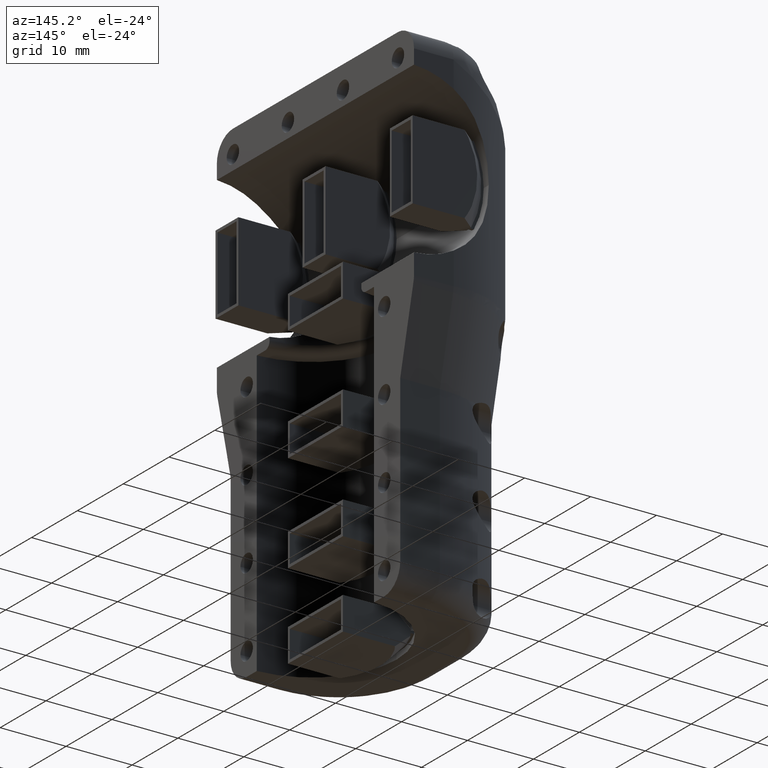
[diagram: clean part render]
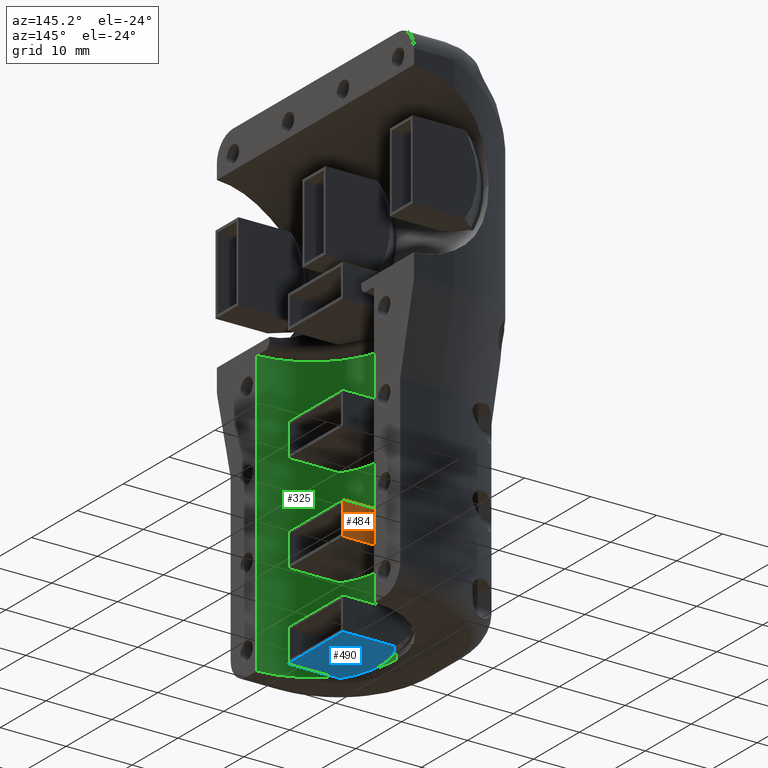
[diagram: same view with three faces highlighted in distinct colors, each labeled with its STEP entity id]
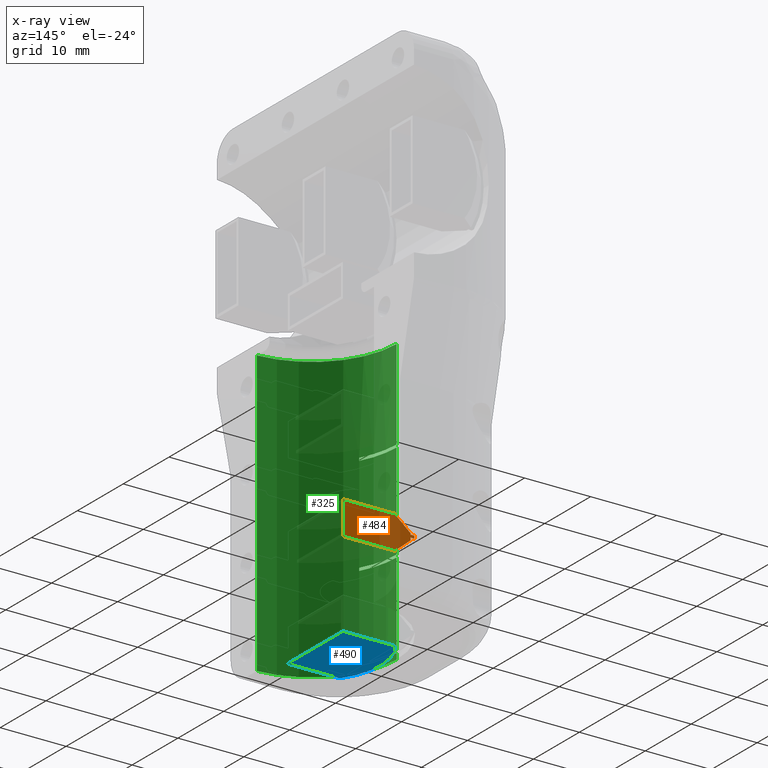
[diagram: x-ray of the same camera — body ghosted, the three highlighted faces saturated]
A machine part, auxiliary view with three faces highlighted in distinct colors.
The next image is the same camera in x-ray (body ghosted, the three faces saturated) — at least one of them is partly hidden behind the body in this view.
Their STEP definitions:

[orange] entity #484 — the highlighted planar face has unit normal (0, 1, 0).
#484=ADVANCED_FACE('',(#736),#2595,.T.);
#736=FACE_OUTER_BOUND('',#1024,.F.);
#1024=EDGE_LOOP('',(#2143,#2144,#2145,#2146,#2147,#2148,#2149,#2150,#2151,
#2152));
#2143=ORIENTED_EDGE('',*,*,#5006,.T.);
#2144=ORIENTED_EDGE('',*,*,#5014,.F.);
#2145=ORIENTED_EDGE('',*,*,#4428,.F.);
#2146=ORIENTED_EDGE('',*,*,#5010,.F.);
#2147=ORIENTED_EDGE('',*,*,#5019,.F.);
#2148=ORIENTED_EDGE('',*,*,#4495,.F.);
#2149=ORIENTED_EDGE('',*,*,#5017,.F.);
#2150=ORIENTED_EDGE('',*,*,#5015,.F.);
#2151=ORIENTED_EDGE('',*,*,#4424,.T.);
#2152=ORIENTED_EDGE('',*,*,#5007,.F.);
#2595=PLANE('',#6139);
#3694=LINE('',#8294,#4073);
#3926=LINE('',#9759,#4305);
#3927=LINE('',#9760,#4306);
#3930=LINE('',#9763,#4309);
#3934=LINE('',#9767,#4313);
#3935=LINE('',#9768,#4314);
#3937=LINE('',#9770,#4316);
#3939=LINE('',#9772,#4318);
#4073=VECTOR('',#6284,0.410000000000007);
#4305=VECTOR('',#6938,5.);
#4306=VECTOR('',#6939,7.87178577275814);
#4309=VECTOR('',#6942,0.199999999999999);
#4313=VECTOR('',#6946,7.87178577275814);
#4314=VECTOR('',#6947,0.389999999999999);
#4316=VECTOR('',#6949,0.568989569983848);
#4318=VECTOR('',#6951,0.56898956998384);
#4424=EDGE_CURVE('',#5672,#5671,#5139,.T.);
#4428=EDGE_CURVE('',#5664,#5663,#5143,.T.);
#4495=EDGE_CURVE('',#5588,#5590,#3694,.T.);
#5006=EDGE_CURVE('',#5274,#5273,#3926,.T.);
#5007=EDGE_CURVE('',#5274,#5671,#3927,.T.);
#5010=EDGE_CURVE('',#5272,#5664,#3930,.T.);
#5014=EDGE_CURVE('',#5663,#5273,#3934,.T.);
#5015=EDGE_CURVE('',#5672,#5270,#3935,.T.);
#5017=EDGE_CURVE('',#5270,#5588,#3937,.T.);
#5019=EDGE_CURVE('',#5590,#5272,#3939,.T.);
#5139=B_SPLINE_CURVE_WITH_KNOTS('',3,(#8133,#8134,#8135,#8136,#8137,#8138),
 .UNSPECIFIED.,.F.,.F.,(4,1,1,4),(0.,0.388508162409244,0.610717458879716,
1.),.UNSPECIFIED.);
#5143=B_SPLINE_CURVE_WITH_KNOTS('',3,(#8157,#8158,#8159,#8160,#8161,#8162),
 .UNSPECIFIED.,.F.,.F.,(4,1,1,4),(0.,0.388508162409244,0.610717458879716,
1.),.UNSPECIFIED.);
#5270=VERTEX_POINT('',#7618);
#5272=VERTEX_POINT('',#7620);
#5273=VERTEX_POINT('',#7621);
#5274=VERTEX_POINT('',#7622);
#5588=VERTEX_POINT('',#7936);
#5590=VERTEX_POINT('',#7938);
#5663=VERTEX_POINT('',#8011);
#5664=VERTEX_POINT('',#8012);
#5671=VERTEX_POINT('',#8019);
#5672=VERTEX_POINT('',#8020);
#6139=AXIS2_PLACEMENT_3D('',#10535,#7417,#7418);
#6284=DIRECTION('',(0.,0.,1.));
#6938=DIRECTION('',(0.,0.,1.));
#6939=DIRECTION('',(-0.999999999496444,3.17350237945785E-05,0.));
#6942=DIRECTION('',(0.,0.,1.));
#6946=DIRECTION('',(0.999999999496444,-3.17350237945785E-05,0.));
#6947=DIRECTION('',(0.,0.,1.));
#6949=DIRECTION('',(-0.999999999496444,3.17350237949729E-05,0.));
#6951=DIRECTION('',(0.999999999496444,-3.17350237934123E-05,0.));
#7417=DIRECTION('',(3.17350237945512E-05,0.999999999496444,0.));
#7418=DIRECTION('',(0.999999999496444,-3.17350237945277E-05,0.));
#7618=CARTESIAN_POINT('',(-10.2371268021274,6.0009600751791,13.8997694628473));
#7620=CARTESIAN_POINT('',(-10.2371268021274,6.00096007517911,14.3097694628473));
#7621=CARTESIAN_POINT('',(0.,6.00063519971629,16.5097694628473));
#7622=CARTESIAN_POINT('',(0.,6.00063519971628,11.5097694628473));
#7936=CARTESIAN_POINT('',(-10.8061163718247,6.00097813207663,13.8997694628473));
#7938=CARTESIAN_POINT('',(-10.8061163718247,6.00097813207664,14.3097694628473));
#8011=CARTESIAN_POINT('',(-7.87158140920094,6.00104863670219,16.50976969161));
#8012=CARTESIAN_POINT('',(-10.2369776008974,6.00111471368533,14.5097695188101));
#8019=CARTESIAN_POINT('',(-7.87158140920096,6.00104863670218,11.5097692340846));
#8020=CARTESIAN_POINT('',(-10.2369776008975,6.00111471368532,13.5097694068845));
#8133=CARTESIAN_POINT('',(-10.2369029270063,6.00119199198456,13.509769294959));
#8134=CARTESIAN_POINT('',(-9.934710197635,6.00110436709798,13.2459191646709));
#8135=CARTESIAN_POINT('',(-9.45772612309042,6.0007772490886,12.8333895581357));
#8136=CARTESIAN_POINT('',(-8.66990914697504,6.00075889955645,12.1658380331844));
#8137=CARTESIAN_POINT('',(-8.1834475611798,6.0010586356947,11.7632590406455));
#8138=CARTESIAN_POINT('',(-7.87147895051013,6.00113024962582,11.5097687765593));
#8157=CARTESIAN_POINT('',(-10.2369029270062,6.00119199198457,14.5097696307357));
#8158=CARTESIAN_POINT('',(-9.93471019763496,6.00110436709799,14.7736197610238));
#8159=CARTESIAN_POINT('',(-9.45772612309038,6.00077724908861,15.186149367559));
#8160=CARTESIAN_POINT('',(-8.66990914697501,6.00075889955646,15.8537008925102));
#8161=CARTESIAN_POINT('',(-8.18344756117976,6.00105863569472,16.2562798850492));
#8162=CARTESIAN_POINT('',(-7.87147895051009,6.00113024962584,16.5097701491353));
#8294=CARTESIAN_POINT('',(-10.8061163718247,6.00097813207664,13.8997694628473));
#9759=CARTESIAN_POINT('',(0.,6.00063519971628,11.5097694628473));
#9760=CARTESIAN_POINT('',(0.,6.00063519971628,11.5097694628473));
#9763=CARTESIAN_POINT('',(-10.2371268021274,6.0009600751791,14.3097694628473));
#9767=CARTESIAN_POINT('',(-7.87178576879474,6.00088501102509,16.5097694628473));
#9768=CARTESIAN_POINT('',(-10.2371268021274,6.0009600751791,13.5097694628473));
#9770=CARTESIAN_POINT('',(-10.2371268021274,6.0009600751791,13.8997694628473));
#9772=CARTESIAN_POINT('',(-10.8061163718247,6.00097813207664,14.3097694628473));
#10535=CARTESIAN_POINT('',(-16.1600000000005,6.00114803770106,10.3497694627667));

[blue] entity #490 — the highlighted planar face has unit normal (0, 0, -1).
#490=ADVANCED_FACE('',(#742),#2599,.T.);
#742=FACE_OUTER_BOUND('',#1030,.F.);
#1030=EDGE_LOOP('',(#2179,#2180,#2181,#2182,#2183,#2184));
#2179=ORIENTED_EDGE('',*,*,#5037,.T.);
#2180=ORIENTED_EDGE('',*,*,#5036,.T.);
#2181=ORIENTED_EDGE('',*,*,#5035,.T.);
#2182=ORIENTED_EDGE('',*,*,#5028,.F.);
#2183=ORIENTED_EDGE('',*,*,#5029,.F.);
#2184=ORIENTED_EDGE('',*,*,#5032,.F.);
#2599=PLANE('',#6145);
#3645=CIRCLE('',#5959,10.3);
#3646=CIRCLE('',#5960,10.3);
#3649=CIRCLE('',#5963,10.3);
#3943=LINE('',#9788,#4322);
#3944=LINE('',#9789,#4323);
#3945=LINE('',#9790,#4324);
#4322=VECTOR('',#6979,7.87178577275813);
#4323=VECTOR('',#6980,12.0000000060447);
#4324=VECTOR('',#6981,7.87216659304471);
#5028=EDGE_CURVE('',#5265,#5655,#3645,.T.);
#5029=EDGE_CURVE('',#5264,#5265,#3646,.T.);
#5032=EDGE_CURVE('',#5653,#5264,#3649,.T.);
#5035=EDGE_CURVE('',#5260,#5655,#3943,.T.);
#5036=EDGE_CURVE('',#5262,#5260,#3944,.T.);
#5037=EDGE_CURVE('',#5653,#5262,#3945,.T.);
#5260=VERTEX_POINT('',#7608);
#5262=VERTEX_POINT('',#7610);
#5264=VERTEX_POINT('',#7612);
#5265=VERTEX_POINT('',#7613);
#5653=VERTEX_POINT('',#8001);
#5655=VERTEX_POINT('',#8003);
#5959=AXIS2_PLACEMENT_3D('',#9781,#6967,#6968);
#5960=AXIS2_PLACEMENT_3D('',#9782,#6969,#6970);
#5963=AXIS2_PLACEMENT_3D('',#9785,#6975,#6976);
#6145=AXIS2_PLACEMENT_3D('',#10541,#7429,#7430);
#6967=DIRECTION('',(0.,0.,-1.));
#6968=DIRECTION('',(-0.83988649459863,0.542762080649363,0.));
#6969=DIRECTION('',(0.,0.,-1.));
#6970=DIRECTION('',(-0.873938286855901,0.486036902680622,0.));
#6975=DIRECTION('',(0.,0.,-1.));
#6976=DIRECTION('',(-0.812797636124159,-0.582546137838866,0.));
#6979=DIRECTION('',(-0.999999999496444,3.17350237946914E-05,0.));
#6980=DIRECTION('',(0.,1.,0.));
#6981=DIRECTION('',(0.999999999496444,-3.17350237946751E-05,0.));
#7429=DIRECTION('',(0.,0.,-1.));
#7430=DIRECTION('',(1.,0.,0.));
#7608=CARTESIAN_POINT('',(0.,6.00063519971628,-1.49023053715269));
#7610=CARTESIAN_POINT('',(0.,-5.99936480632842,-1.49023053715269));
#7612=CARTESIAN_POINT('',(-8.50156347138958,5.00679942676405,-1.49023053715269));
#7613=CARTESIAN_POINT('',(-8.15083001113969,5.59106875984209,-1.49023053715269));
#8001=CARTESIAN_POINT('',(-7.87196223987272,-5.99927862158176,-1.49023076591535));
#8003=CARTESIAN_POINT('',(-7.87158140920096,6.00104863670218,-1.49023076591535));
#9781=CARTESIAN_POINT('',(0.500000883226196,0.000619329153650665,-1.49023053715269));
#9782=CARTESIAN_POINT('',(0.500000883226196,0.000619329153650665,-1.49023053715269));
#9785=CARTESIAN_POINT('',(0.500000883226196,0.000619329153650665,-1.49023053715269));
#9788=CARTESIAN_POINT('',(0.,6.00063519971628,-1.49023053715269));
#9789=CARTESIAN_POINT('',(0.,-5.99936480632843,-1.49023053715269));
#9790=CARTESIAN_POINT('',(-7.87216658908077,-5.99911498293428,-1.4902305371527));
#10541=CARTESIAN_POINT('',(-11.7999991167738,12.3006193291536,-1.49023053715269));

[green] entity #325 — the highlighted cylindrical surface (partial cylindrical patch) has radius 12.8 mm, axis along (0, 0, -1).
#180=CYLINDRICAL_SURFACE('',#5984,12.8);
#325=ADVANCED_FACE('',(#577),#180,.F.);
#577=FACE_OUTER_BOUND('',#841,.F.);
#841=EDGE_LOOP('',(#1269,#1270,#1271,#1272,#1273,#1274,#1275,#1276,#1277,
#1278,#1279,#1280,#1281,#1282,#1283,#1284));
#1269=ORIENTED_EDGE('',*,*,#4716,.F.);
#1270=ORIENTED_EDGE('',*,*,#4713,.F.);
#1271=ORIENTED_EDGE('',*,*,#4503,.T.);
#1272=ORIENTED_EDGE('',*,*,#4504,.F.);
#1273=ORIENTED_EDGE('',*,*,#4505,.T.);
#1274=ORIENTED_EDGE('',*,*,#4712,.F.);
#1275=ORIENTED_EDGE('',*,*,#4497,.T.);
#1276=ORIENTED_EDGE('',*,*,#4498,.F.);
#1277=ORIENTED_EDGE('',*,*,#4499,.T.);
#1278=ORIENTED_EDGE('',*,*,#4711,.F.);
#1279=ORIENTED_EDGE('',*,*,#4491,.T.);
#1280=ORIENTED_EDGE('',*,*,#4492,.F.);
#1281=ORIENTED_EDGE('',*,*,#4493,.T.);
#1282=ORIENTED_EDGE('',*,*,#4717,.F.);
#1283=ORIENTED_EDGE('',*,*,#4679,.F.);
#1284=ORIENTED_EDGE('',*,*,#4677,.T.);
#3424=CIRCLE('',#5738,12.8);
#3425=CIRCLE('',#5739,12.8);
#3428=CIRCLE('',#5742,12.8);
#3429=CIRCLE('',#5743,12.8);
#3432=CIRCLE('',#5746,12.8);
#3433=CIRCLE('',#5747,12.8);
#3519=CIRCLE('',#5833,12.8);
#3528=CIRCLE('',#5842,12.8);
#3693=LINE('',#8291,#4072);
#3695=LINE('',#8297,#4074);
#3697=LINE('',#8303,#4076);
#3741=LINE('',#9233,#4120);
#3765=LINE('',#9293,#4144);
#3766=LINE('',#9294,#4145);
#3767=LINE('',#9295,#4146);
#3768=LINE('',#9299,#4147);
#4072=VECTOR('',#6279,0.410000000000001);
#4074=VECTOR('',#6289,0.409999999999998);
#4076=VECTOR('',#6299,0.410000000000007);
#4120=VECTOR('',#6513,43.);
#4144=VECTOR('',#6553,12.59);
#4145=VECTOR('',#6554,14.59);
#4146=VECTOR('',#6555,13.6902305382217);
#4147=VECTOR('',#6562,0.899769461778332);
#4491=EDGE_CURVE('',#5595,#5592,#3424,.T.);
#4492=EDGE_CURVE('',#5591,#5592,#3693,.T.);
#4493=EDGE_CURVE('',#5591,#5593,#3425,.T.);
#4497=EDGE_CURVE('',#5589,#5586,#3428,.T.);
#4498=EDGE_CURVE('',#5585,#5586,#3695,.T.);
#4499=EDGE_CURVE('',#5585,#5587,#3429,.T.);
#4503=EDGE_CURVE('',#5583,#5580,#3432,.T.);
#4504=EDGE_CURVE('',#5579,#5580,#3697,.T.);
#4505=EDGE_CURVE('',#5579,#5581,#3433,.T.);
#4677=EDGE_CURVE('',#5409,#5406,#3741,.T.);
#4679=EDGE_CURVE('',#5409,#5405,#3519,.T.);
#4711=EDGE_CURVE('',#5595,#5587,#3765,.T.);
#4712=EDGE_CURVE('',#5589,#5581,#3766,.T.);
#4713=EDGE_CURVE('',#5583,#5395,#3767,.T.);
#4716=EDGE_CURVE('',#5395,#5406,#3528,.T.);
#4717=EDGE_CURVE('',#5405,#5593,#3768,.T.);
#5395=VERTEX_POINT('',#7743);
#5405=VERTEX_POINT('',#7753);
#5406=VERTEX_POINT('',#7754);
#5409=VERTEX_POINT('',#7757);
#5579=VERTEX_POINT('',#7927);
#5580=VERTEX_POINT('',#7928);
#5581=VERTEX_POINT('',#7929);
#5583=VERTEX_POINT('',#7931);
#5585=VERTEX_POINT('',#7933);
#5586=VERTEX_POINT('',#7934);
#5587=VERTEX_POINT('',#7935);
#5589=VERTEX_POINT('',#7937);
#5591=VERTEX_POINT('',#7939);
#5592=VERTEX_POINT('',#7940);
#5593=VERTEX_POINT('',#7941);
#5595=VERTEX_POINT('',#7943);
#5738=AXIS2_PLACEMENT_3D('',#8290,#6277,#6278);
#5739=AXIS2_PLACEMENT_3D('',#8292,#6280,#6281);
#5742=AXIS2_PLACEMENT_3D('',#8296,#6287,#6288);
#5743=AXIS2_PLACEMENT_3D('',#8298,#6290,#6291);
#5746=AXIS2_PLACEMENT_3D('',#8302,#6297,#6298);
#5747=AXIS2_PLACEMENT_3D('',#8304,#6300,#6301);
#5833=AXIS2_PLACEMENT_3D('',#9235,#6516,#6517);
#5842=AXIS2_PLACEMENT_3D('',#9298,#6560,#6561);
#5984=AXIS2_PLACEMENT_3D('',#9896,#7107,#7108);
#6277=DIRECTION('',(0.,0.,1.));
#6278=DIRECTION('',(-1.,0.,0.));
#6279=DIRECTION('',(0.,0.,1.));
#6280=DIRECTION('',(0.,0.,-1.));
#6281=DIRECTION('',(-0.883371404239544,-0.46867362009383,0.));
#6287=DIRECTION('',(0.,0.,1.));
#6288=DIRECTION('',(-1.,0.,0.));
#6289=DIRECTION('',(0.,0.,1.));
#6290=DIRECTION('',(0.,0.,-1.));
#6291=DIRECTION('',(-0.88337140423954,-0.468673620093839,0.));
#6297=DIRECTION('',(0.,0.,1.));
#6298=DIRECTION('',(-1.,0.,0.));
#6299=DIRECTION('',(0.,0.,1.));
#6300=DIRECTION('',(0.,0.,-1.));
#6301=DIRECTION('',(-0.883371404239544,-0.46867362009383,0.));
#6513=DIRECTION('',(0.,0.,1.));
#6516=DIRECTION('',(0.,0.,-1.));
#6517=DIRECTION('',(-0.0390625000000042,-0.999236769286314,0.));
#6553=DIRECTION('',(0.,0.,1.));
#6554=DIRECTION('',(0.,0.,1.));
#6555=DIRECTION('',(0.,0.,1.));
#6560=DIRECTION('',(0.,0.,1.));
#6561=DIRECTION('',(-1.,0.,0.));
#6562=DIRECTION('',(0.,0.,1.));
#7107=DIRECTION('',(0.,0.,-1.));
#7108=DIRECTION('',(1.,0.,0.));
#7743=CARTESIAN_POINT('',(-12.2999999999999,4.9616133198281E-07,43.000000001069));
#7753=CARTESIAN_POINT('',(-12.2999999999999,4.96161328904039E-07,0.));
#7754=CARTESIAN_POINT('',(0.,-12.7902301507035,43.000000001069));
#7757=CARTESIAN_POINT('',(0.,-12.7902301507035,0.));
#7927=CARTESIAN_POINT('',(-10.8071539742661,-5.99902184103971,28.8997694628473));
#7928=CARTESIAN_POINT('',(-10.8071539742661,-5.99902184103971,29.3097694628473));
#7929=CARTESIAN_POINT('',(-12.2999999999999,4.96161332282821E-07,28.8997694628473));
#7931=CARTESIAN_POINT('',(-12.2999999999999,4.96161333529502E-07,29.3097694628473));
#7933=CARTESIAN_POINT('',(-10.8071539742661,-5.99902184103975,13.8997694628473));
#7934=CARTESIAN_POINT('',(-10.8071539742661,-5.99902184103975,14.3097694628473));
#7935=CARTESIAN_POINT('',(-12.2999999999999,4.96161330445851E-07,13.8997694628473));
#7937=CARTESIAN_POINT('',(-12.2999999999999,4.96161331080208E-07,14.3097694628473));
#7939=CARTESIAN_POINT('',(-10.8071539742661,-5.99902184103971,0.899769462847306));
#7940=CARTESIAN_POINT('',(-10.8071539742661,-5.99902184103969,1.30976946284731));
#7941=CARTESIAN_POINT('',(-12.2999999999999,4.9616132885381E-07,0.899769462847309));
#7943=CARTESIAN_POINT('',(-12.2999999999999,4.96161328957487E-07,1.30976946284731));
#8290=CARTESIAN_POINT('',(0.500000000000057,4.96161329486079E-07,1.30976946284731));
#8291=CARTESIAN_POINT('',(-10.8071539742661,-5.99902184103972,0.899769462847307));
#8292=CARTESIAN_POINT('',(0.500000000000057,4.96161329225258E-07,0.899769462847307));
#8296=CARTESIAN_POINT('',(0.500000000000056,4.96161334262202E-07,14.3097694628473));
#8297=CARTESIAN_POINT('',(-10.8071539742661,-5.99902184103972,13.8997694628473));
#8298=CARTESIAN_POINT('',(0.500000000000056,4.96161332409339E-07,13.8997694628473));
#8302=CARTESIAN_POINT('',(0.500000000000055,4.96161339773112E-07,29.3097694628473));
#8303=CARTESIAN_POINT('',(-10.8071539742661,-5.99902184103972,28.8997694628473));
#8304=CARTESIAN_POINT('',(0.500000000000055,4.9616133608328E-07,28.8997694628473));
#9233=CARTESIAN_POINT('',(0.,-12.7902301507035,1.06897680199003E-09));
#9235=CARTESIAN_POINT('',(0.500000000000057,4.96161329004878E-07,0.));
#9293=CARTESIAN_POINT('',(-12.2999999999999,4.96161328301304E-07,1.30976946284731));
#9294=CARTESIAN_POINT('',(-12.2999999999999,4.96161329097325E-07,14.3097694628473));
#9295=CARTESIAN_POINT('',(-12.2999999999999,4.9616133001581E-07,29.3097694628473));
#9298=CARTESIAN_POINT('',(0.500000000000057,4.96161331637868E-07,43.000000001069));
#9299=CARTESIAN_POINT('',(-12.2999999999999,4.96161329788652E-07,1.06897601881428E-09));
#9896=CARTESIAN_POINT('',(0.500000000000057,4.96161329004878E-07,1.06897601881428E-09));